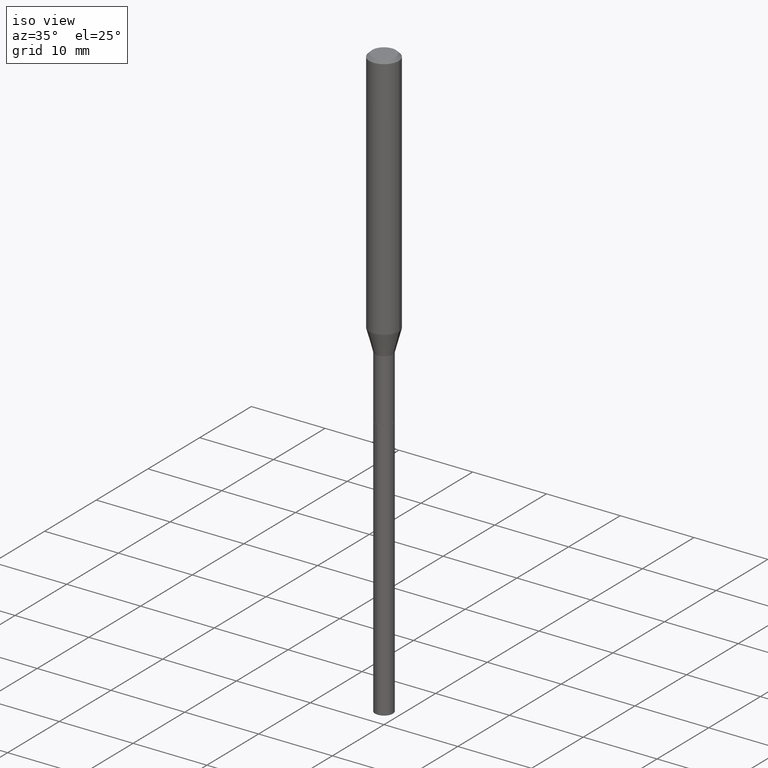
[diagram: clean part render]
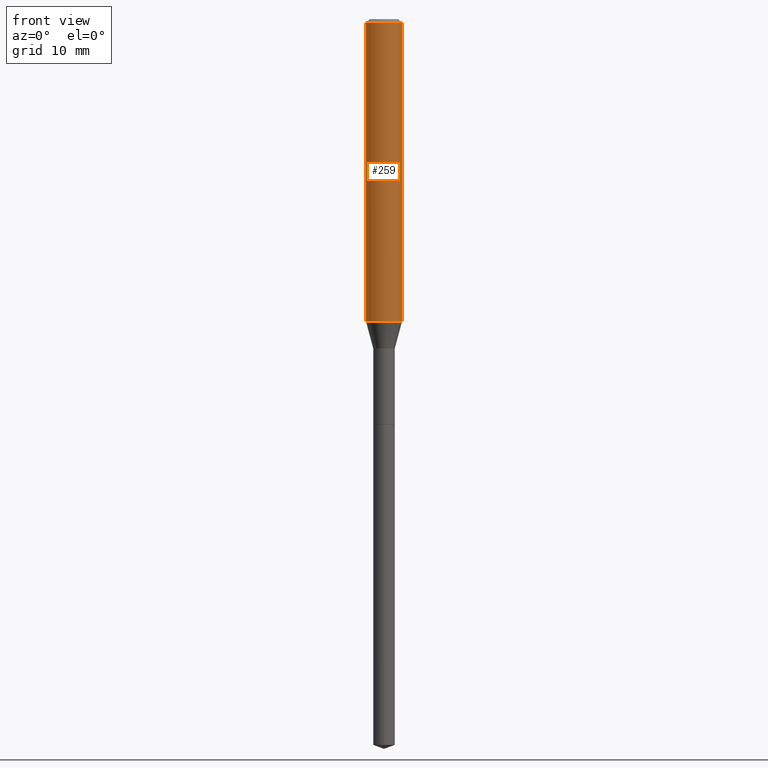
[diagram: tour spotlight — one face highlighted and labeled with its STEP entity id]
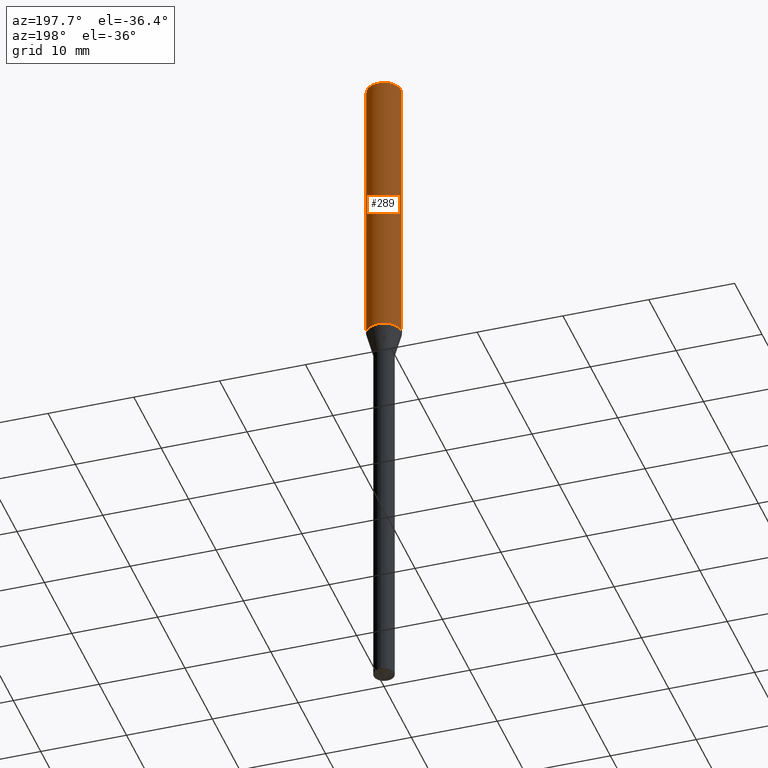
[diagram: tour spotlight — one face highlighted and labeled with its STEP entity id]
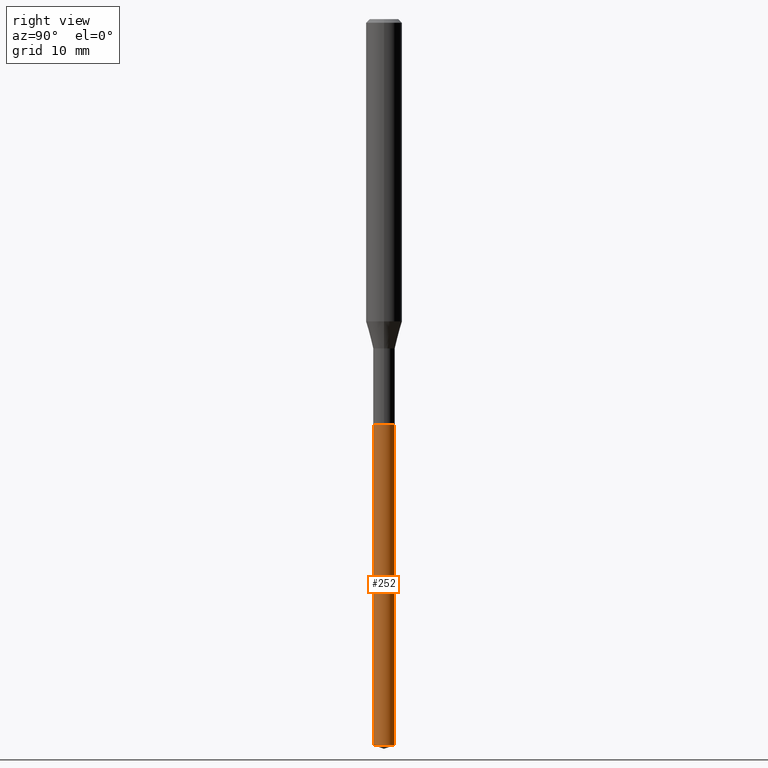
[diagram: tour spotlight — one face highlighted and labeled with its STEP entity id]
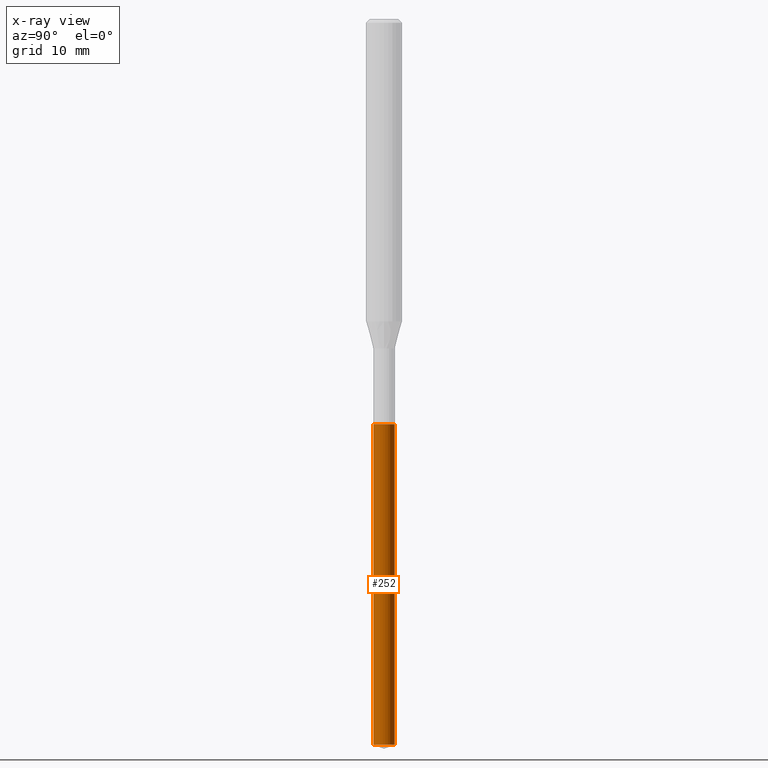
[diagram: x-ray of the same camera — body ghosted, this tour face saturated]
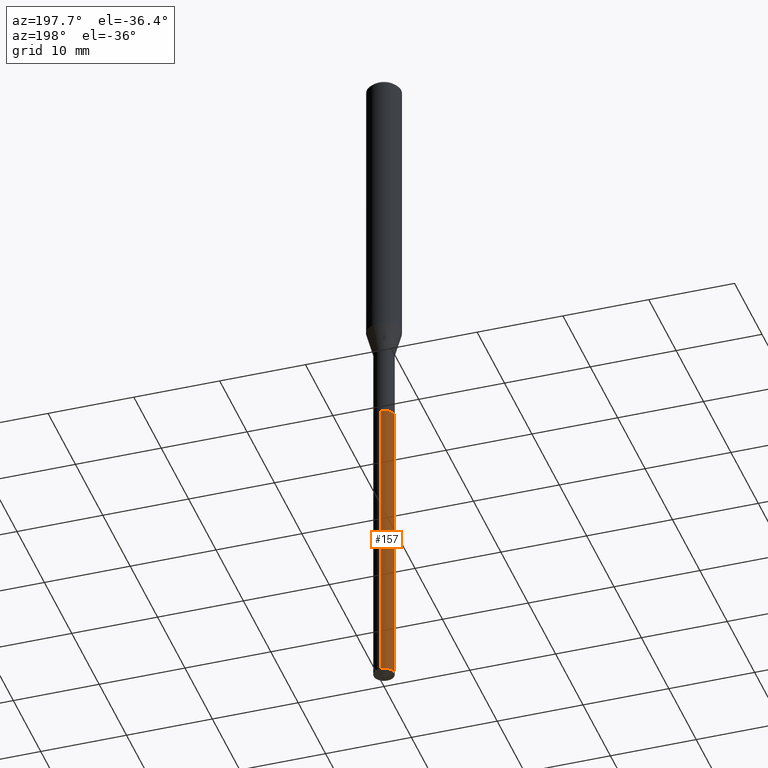
[diagram: tour spotlight — one face highlighted and labeled with its STEP entity id]
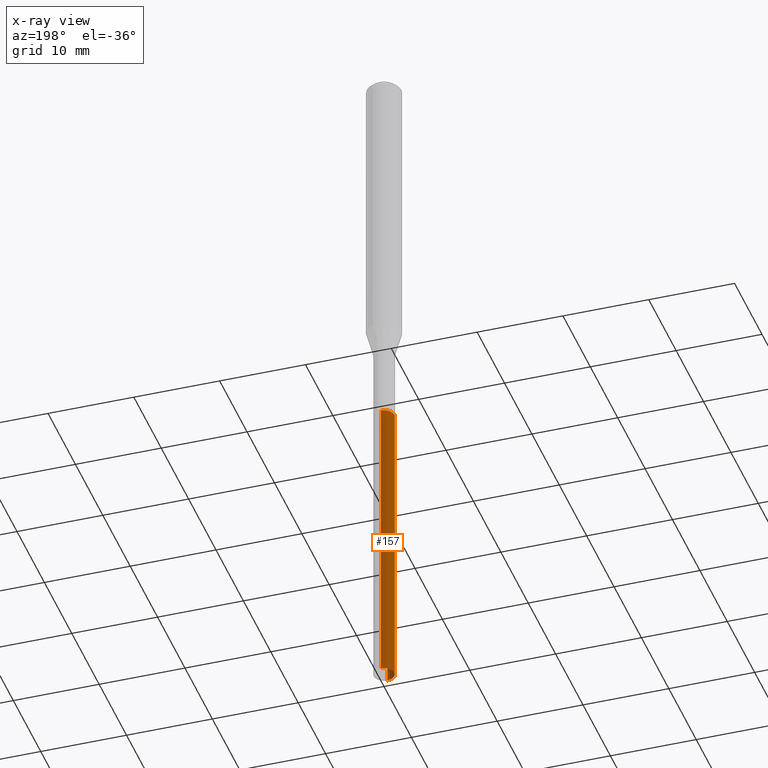
[diagram: x-ray of the same camera — body ghosted, this tour face saturated]
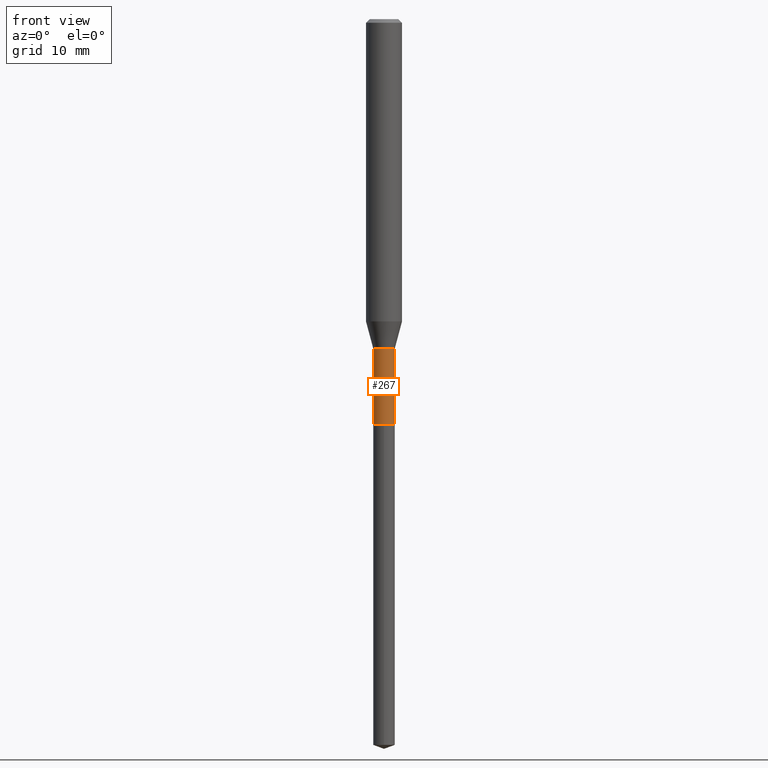
[diagram: tour spotlight — one face highlighted and labeled with its STEP entity id]
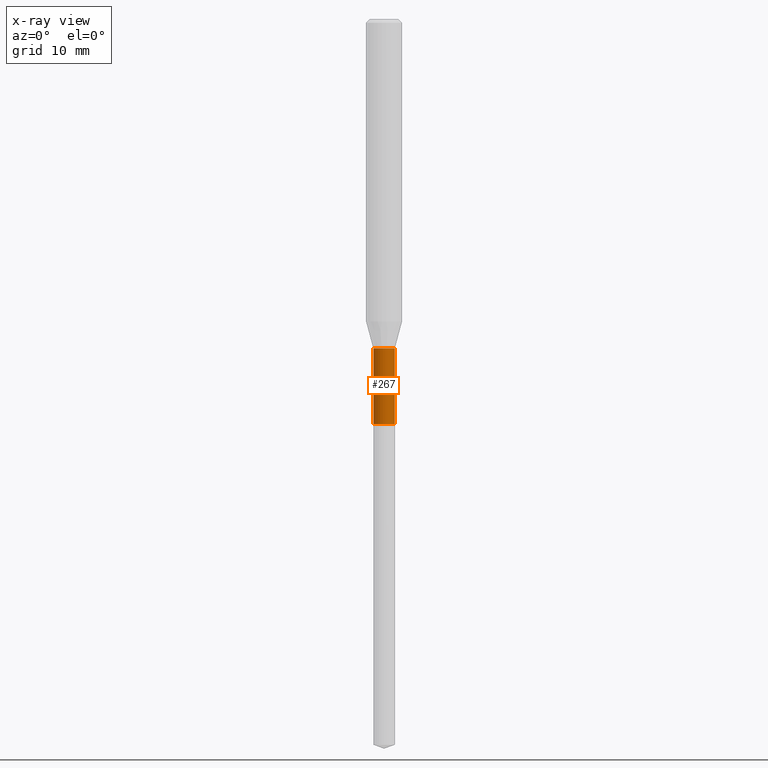
[diagram: x-ray of the same camera — body ghosted, this tour face saturated]
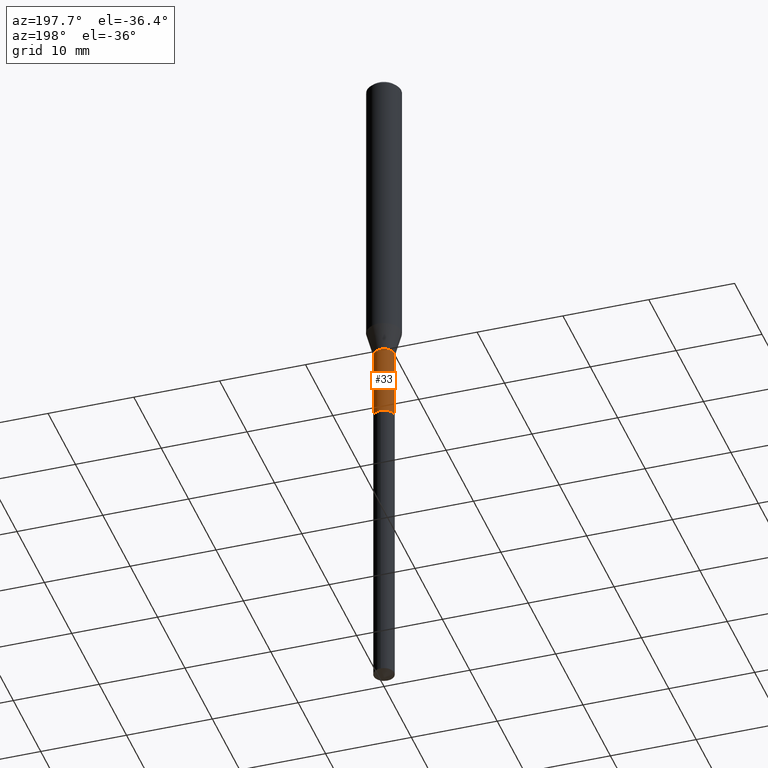
[diagram: tour spotlight — one face highlighted and labeled with its STEP entity id]
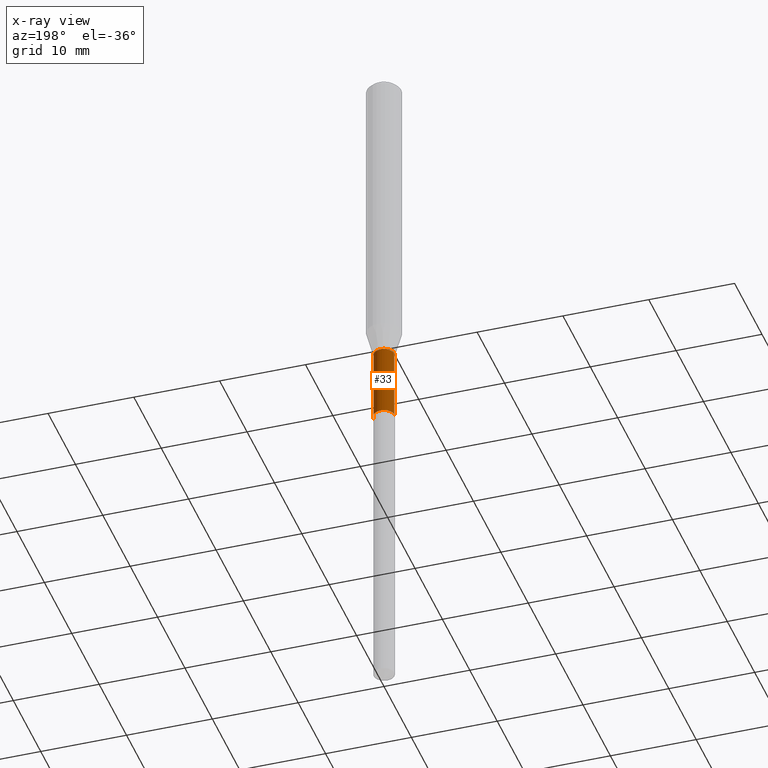
[diagram: x-ray of the same camera — body ghosted, this tour face saturated]
A machine part: a face-by-face anatomy tour. The part has 17 B-rep faces; the first image is the clean iso view, then the 6 largest visible faces are spotlighted one at a time (largest first), each with its STEP entity span.

Face 1 — front view, entity #259. In plain terms, the highlighted cylindrical surface (edge-blend (fillet) strip) has radius 2.0003 mm, axis along (-0, 0, 1).
Definition (entity closure, byte-faithful):
#22 = DIRECTION ( 'NONE',  ( -2.445468806185136597E-29, 3.491481338843145583E-15, 1.000000000000000000 ) ) ;
#41 = DIRECTION ( 'NONE',  ( -2.445468806185136877E-29, 3.491481338843145188E-15, 1.000000000000000000 ) ) ;
#57 = VERTEX_POINT ( 'NONE', #105 ) ;
#60 = DIRECTION ( 'NONE',  ( 1.000000000000000000, -6.982962677686265922E-15, 0.000000000000000000 ) ) ;
#66 = DIRECTION ( 'NONE',  ( 1.000000000000000000, -6.982962677686267499E-15, 4.876176775795935232E-29 ) ) ;
#105 = CARTESIAN_POINT ( 'NONE',  ( -0.07875000000000000056, -1.774136962595884491E-15, -0.01575000000000009726 ) ) ;
#110 = FACE_OUTER_BOUND ( 'NONE', #137, .T. ) ;
#137 = EDGE_LOOP ( 'NONE', ( #394, #271, #168, #328 ) ) ;
#141 = VECTOR ( 'NONE', #256, 39.37007874015748143 ) ;
#147 = CARTESIAN_POINT ( 'NONE',  ( 3.230563088838193382E-29, -4.612387902927150012E-15, -1.321040399561580037 ) ) ;
#152 = EDGE_CURVE ( 'NONE', #428, #280, #210, .T. ) ;
#161 = VERTEX_POINT ( 'NONE', #437 ) ;
#168 = ORIENTED_EDGE ( 'NONE', *, *, #243, .T. ) ;
#175 = EDGE_CURVE ( 'NONE', #57, #161, #454, .T. ) ;
#179 = DIRECTION ( 'NONE',  ( -2.445468806185136597E-29, 3.491481338843145583E-15, 1.000000000000000000 ) ) ;
#194 = CARTESIAN_POINT ( 'NONE',  ( -0.07875000000000008382, 5.595524044110794920E-16, -3.873661383575742696E-30 ) ) ;
#202 = AXIS2_PLACEMENT_3D ( 'NONE', #147, #264, #378 ) ;
#210 = CIRCLE ( 'NONE', #202, 0.07875000000000016709 ) ;
#243 = EDGE_CURVE ( 'NONE', #280, #161, #484, .T. ) ;
#254 = CARTESIAN_POINT ( 'NONE',  ( 0.000000000000000000, 0.000000000000000000, 0.000000000000000000 ) ) ;
#256 = DIRECTION ( 'NONE',  ( -2.445468806185136877E-29, 3.491481338843145188E-15, 1.000000000000000000 ) ) ;
#259 = ADVANCED_FACE ( 'NONE', ( #110 ), #479, .T. ) ;
#264 = DIRECTION ( 'NONE',  ( -2.445468806185136597E-29, 3.491481338843145583E-15, 1.000000000000000000 ) ) ;
#271 = ORIENTED_EDGE ( 'NONE', *, *, #152, .T. ) ;
#274 = AXIS2_PLACEMENT_3D ( 'NONE', #254, #179, #66 ) ;
#280 = VERTEX_POINT ( 'NONE', #481 ) ;
#328 = ORIENTED_EDGE ( 'NONE', *, *, #175, .F. ) ;
#329 = CARTESIAN_POINT ( 'NONE',  ( 0.07875000000000008382, -5.499083108677941345E-16, 3.839989210939303220E-30 ) ) ;
#349 = LINE ( 'NONE', #194, #414 ) ;
#375 = EDGE_CURVE ( 'NONE', #428, #57, #349, .T. ) ;
#378 = DIRECTION ( 'NONE',  ( 1.000000000000000000, -6.982962677686271444E-15, 0.000000000000000000 ) ) ;
#379 = CARTESIAN_POINT ( 'NONE',  ( -0.07875000000000016709, -4.052835498516069633E-15, -1.321040399561580037 ) ) ;
#384 = AXIS2_PLACEMENT_3D ( 'NONE', #441, #22, #60 ) ;
#394 = ORIENTED_EDGE ( 'NONE', *, *, #375, .F. ) ;
#414 = VECTOR ( 'NONE', #41, 39.37007874015748143 ) ;
#428 = VERTEX_POINT ( 'NONE', #379 ) ;
#437 = CARTESIAN_POINT ( 'NONE',  ( 0.07875000000000000056, -6.048991419545733705E-16, -0.01575000000000009726 ) ) ;
#441 = CARTESIAN_POINT ( 'NONE',  ( 3.851613369741613486E-31, -5.499083108677987691E-17, -0.01575000000000009726 ) ) ;
#454 = CIRCLE ( 'NONE', #384, 0.07875000000000000056 ) ;
#479 = CYLINDRICAL_SURFACE ( 'NONE', #274, 0.07875000000000008382 ) ;
#481 = CARTESIAN_POINT ( 'NONE',  ( 0.07875000000000016709, -5.162296213794944147E-15, -1.321040399561580037 ) ) ;
#484 = LINE ( 'NONE', #329, #141 ) ;

Face 2 — auxiliary view, entity #289. In plain terms, the highlighted cylindrical surface (edge-blend (fillet) strip) has radius 2.0003 mm, axis along (-0, 0, 1).
Definition (entity closure, byte-faithful):
#2 = CIRCLE ( 'NONE', #260, 0.07875000000000016709 ) ;
#27 = EDGE_LOOP ( 'NONE', ( #316, #129, #382, #277 ) ) ;
#29 = DIRECTION ( 'NONE',  ( 1.000000000000000000, -6.982962677686267499E-15, 4.876176775795935232E-29 ) ) ;
#40 = DIRECTION ( 'NONE',  ( -2.445468806185136597E-29, 3.491481338843145583E-15, 1.000000000000000000 ) ) ;
#41 = DIRECTION ( 'NONE',  ( -2.445468806185136877E-29, 3.491481338843145188E-15, 1.000000000000000000 ) ) ;
#50 = AXIS2_PLACEMENT_3D ( 'NONE', #276, #40, #213 ) ;
#57 = VERTEX_POINT ( 'NONE', #105 ) ;
#105 = CARTESIAN_POINT ( 'NONE',  ( -0.07875000000000000056, -1.774136962595884491E-15, -0.01575000000000009726 ) ) ;
#112 = CYLINDRICAL_SURFACE ( 'NONE', #312, 0.07875000000000008382 ) ;
#129 = ORIENTED_EDGE ( 'NONE', *, *, #375, .T. ) ;
#141 = VECTOR ( 'NONE', #256, 39.37007874015748143 ) ;
#146 = DIRECTION ( 'NONE',  ( 1.000000000000000000, -6.982962677686271444E-15, 0.000000000000000000 ) ) ;
#161 = VERTEX_POINT ( 'NONE', #437 ) ;
#182 = CARTESIAN_POINT ( 'NONE',  ( 3.230563088838193382E-29, -4.612387902927150012E-15, -1.321040399561580037 ) ) ;
#194 = CARTESIAN_POINT ( 'NONE',  ( -0.07875000000000008382, 5.595524044110794920E-16, -3.873661383575742696E-30 ) ) ;
#213 = DIRECTION ( 'NONE',  ( 1.000000000000000000, -6.982962677686265922E-15, 0.000000000000000000 ) ) ;
#228 = FACE_OUTER_BOUND ( 'NONE', #27, .T. ) ;
#243 = EDGE_CURVE ( 'NONE', #280, #161, #484, .T. ) ;
#256 = DIRECTION ( 'NONE',  ( -2.445468806185136877E-29, 3.491481338843145188E-15, 1.000000000000000000 ) ) ;
#260 = AXIS2_PLACEMENT_3D ( 'NONE', #182, #261, #146 ) ;
#261 = DIRECTION ( 'NONE',  ( -2.445468806185136597E-29, 3.491481338843145583E-15, 1.000000000000000000 ) ) ;
#276 = CARTESIAN_POINT ( 'NONE',  ( 3.851613369741613486E-31, -5.499083108677987691E-17, -0.01575000000000009726 ) ) ;
#277 = ORIENTED_EDGE ( 'NONE', *, *, #243, .F. ) ;
#279 = EDGE_CURVE ( 'NONE', #280, #428, #2, .T. ) ;
#280 = VERTEX_POINT ( 'NONE', #481 ) ;
#289 = ADVANCED_FACE ( 'NONE', ( #228 ), #112, .T. ) ;
#290 = CIRCLE ( 'NONE', #50, 0.07875000000000000056 ) ;
#300 = DIRECTION ( 'NONE',  ( -2.445468806185136597E-29, 3.491481338843145583E-15, 1.000000000000000000 ) ) ;
#312 = AXIS2_PLACEMENT_3D ( 'NONE', #366, #300, #29 ) ;
#316 = ORIENTED_EDGE ( 'NONE', *, *, #279, .T. ) ;
#329 = CARTESIAN_POINT ( 'NONE',  ( 0.07875000000000008382, -5.499083108677941345E-16, 3.839989210939303220E-30 ) ) ;
#349 = LINE ( 'NONE', #194, #414 ) ;
#366 = CARTESIAN_POINT ( 'NONE',  ( 0.000000000000000000, 0.000000000000000000, 0.000000000000000000 ) ) ;
#375 = EDGE_CURVE ( 'NONE', #428, #57, #349, .T. ) ;
#379 = CARTESIAN_POINT ( 'NONE',  ( -0.07875000000000016709, -4.052835498516069633E-15, -1.321040399561580037 ) ) ;
#382 = ORIENTED_EDGE ( 'NONE', *, *, #482, .F. ) ;
#414 = VECTOR ( 'NONE', #41, 39.37007874015748143 ) ;
#428 = VERTEX_POINT ( 'NONE', #379 ) ;
#437 = CARTESIAN_POINT ( 'NONE',  ( 0.07875000000000000056, -6.048991419545733705E-16, -0.01575000000000009726 ) ) ;
#481 = CARTESIAN_POINT ( 'NONE',  ( 0.07875000000000016709, -5.162296213794944147E-15, -1.321040399561580037 ) ) ;
#482 = EDGE_CURVE ( 'NONE', #161, #57, #290, .T. ) ;
#484 = LINE ( 'NONE', #329, #141 ) ;

Face 3 — right view, entity #252. An x-ray twin of the same camera follows (body ghosted, this face saturated) — the face is partly hidden behind the body. In plain terms, the highlighted cylindrical surface (edge-blend (fillet) strip) has radius 1.2001 mm, axis along (-0, 0, 1).
Definition (entity closure, byte-faithful):
#36 = DIRECTION ( 'NONE',  ( -6.982962677686265922E-15, -1.000000000000000000, 0.000000000000000000 ) ) ;
#43 = ORIENTED_EDGE ( 'NONE', *, *, #75, .T. ) ;
#46 = ORIENTED_EDGE ( 'NONE', *, *, #89, .F. ) ;
#54 = VERTEX_POINT ( 'NONE', #371 ) ;
#69 = CARTESIAN_POINT ( 'NONE',  ( 4.332637083918206987E-29, -6.185857488028401870E-15, -1.771700000000000497 ) ) ;
#71 = CARTESIAN_POINT ( 'NONE',  ( 4.332637083918206987E-29, -6.185857488028401870E-15, -1.771700000000000497 ) ) ;
#75 = EDGE_CURVE ( 'NONE', #233, #348, #448, .T. ) ;
#89 = EDGE_CURVE ( 'NONE', #54, #418, #109, .T. ) ;
#106 = CARTESIAN_POINT ( 'NONE',  ( 3.357314426467248951E-16, 0.04724999999998893974, -3.171802406430922705 ) ) ;
#109 = LINE ( 'NONE', #188, #234 ) ;
#111 = DIRECTION ( 'NONE',  ( -2.445490253052761911E-29, 3.491450625708026576E-15, 1.000000000000000000 ) ) ;
#114 = DIRECTION ( 'NONE',  ( -2.445490253052761911E-29, 3.491450625708026576E-15, 1.000000000000000000 ) ) ;
#128 = EDGE_CURVE ( 'NONE', #418, #348, #148, .T. ) ;
#145 = CYLINDRICAL_SURFACE ( 'NONE', #242, 0.04724999999999999339 ) ;
#148 = CIRCLE ( 'NONE', #413, 0.04724999999999999339 ) ;
#149 = DIRECTION ( 'NONE',  ( -2.445490253052761631E-29, 3.491450625708026576E-15, 1.000000000000000000 ) ) ;
#155 = CARTESIAN_POINT ( 'NONE',  ( -3.299449865206327187E-16, -0.04725000000000618289, -1.771700000000000053 ) ) ;
#188 = CARTESIAN_POINT ( 'NONE',  ( -3.299449865206327187E-16, -0.04725000000000618289, -1.771700000000000053 ) ) ;
#189 = CARTESIAN_POINT ( 'NONE',  ( 3.357314426467249937E-16, 0.04724999999999380390, -1.771700000000000719 ) ) ;
#199 = EDGE_CURVE ( 'NONE', #54, #233, #229, .T. ) ;
#214 = ORIENTED_EDGE ( 'NONE', *, *, #128, .F. ) ;
#229 = CIRCLE ( 'NONE', #319, 0.04724999999999999339 ) ;
#233 = VERTEX_POINT ( 'NONE', #106 ) ;
#234 = VECTOR ( 'NONE', #111, 39.37007874015748143 ) ;
#242 = AXIS2_PLACEMENT_3D ( 'NONE', #69, #149, #487 ) ;
#252 = ADVANCED_FACE ( 'NONE', ( #338 ), #145, .T. ) ;
#319 = AXIS2_PLACEMENT_3D ( 'NONE', #374, #396, #36 ) ;
#338 = FACE_OUTER_BOUND ( 'NONE', #360, .T. ) ;
#339 = DIRECTION ( 'NONE',  ( -2.445490253052761631E-29, 3.491450625708026576E-15, 1.000000000000000000 ) ) ;
#348 = VERTEX_POINT ( 'NONE', #189 ) ;
#360 = EDGE_LOOP ( 'NONE', ( #390, #43, #214, #46 ) ) ;
#371 = CARTESIAN_POINT ( 'NONE',  ( -3.299449865205985511E-16, -0.04725000000001107481, -3.171802406430922705 ) ) ;
#374 = CARTESIAN_POINT ( 'NONE',  ( 7.756573872120744429E-29, -1.107424591101695963E-14, -3.171802406430922705 ) ) ;
#390 = ORIENTED_EDGE ( 'NONE', *, *, #199, .T. ) ;
#396 = DIRECTION ( 'NONE',  ( -2.445490253052761631E-29, 3.491450625708026576E-15, 1.000000000000000000 ) ) ;
#413 = AXIS2_PLACEMENT_3D ( 'NONE', #71, #339, #489 ) ;
#418 = VERTEX_POINT ( 'NONE', #155 ) ;
#432 = VECTOR ( 'NONE', #114, 39.37007874015748143 ) ;
#448 = LINE ( 'NONE', #486, #432 ) ;
#486 = CARTESIAN_POINT ( 'NONE',  ( 3.357314426466905796E-16, 0.04724999999999380390, -1.771700000000000719 ) ) ;
#487 = DIRECTION ( 'NONE',  ( -6.982962677686265922E-15, -1.000000000000000000, 5.781688875479922944E-15 ) ) ;
#489 = DIRECTION ( 'NONE',  ( -6.982962677686265922E-15, -1.000000000000000000, 5.781688875479922944E-15 ) ) ;

Face 4 — auxiliary view, entity #157. An x-ray twin of the same camera follows (body ghosted, this face saturated) — the face is partly hidden behind the body. In plain terms, the highlighted cylindrical surface (edge-blend (fillet) strip) has radius 1.2001 mm, axis along (-0, 0, 1).
Definition (entity closure, byte-faithful):
#8 = AXIS2_PLACEMENT_3D ( 'NONE', #409, #460, #125 ) ;
#28 = ORIENTED_EDGE ( 'NONE', *, *, #166, .T. ) ;
#54 = VERTEX_POINT ( 'NONE', #371 ) ;
#75 = EDGE_CURVE ( 'NONE', #233, #348, #448, .T. ) ;
#82 = AXIS2_PLACEMENT_3D ( 'NONE', #144, #434, #98 ) ;
#89 = EDGE_CURVE ( 'NONE', #54, #418, #109, .T. ) ;
#94 = ORIENTED_EDGE ( 'NONE', *, *, #75, .F. ) ;
#98 = DIRECTION ( 'NONE',  ( -6.982962677686265922E-15, -1.000000000000000000, 5.781688875479922944E-15 ) ) ;
#106 = CARTESIAN_POINT ( 'NONE',  ( 3.357314426467248951E-16, 0.04724999999998893974, -3.171802406430922705 ) ) ;
#107 = AXIS2_PLACEMENT_3D ( 'NONE', #440, #331, #370 ) ;
#109 = LINE ( 'NONE', #188, #234 ) ;
#111 = DIRECTION ( 'NONE',  ( -2.445490253052761911E-29, 3.491450625708026576E-15, 1.000000000000000000 ) ) ;
#114 = DIRECTION ( 'NONE',  ( -2.445490253052761911E-29, 3.491450625708026576E-15, 1.000000000000000000 ) ) ;
#125 = DIRECTION ( 'NONE',  ( -6.982962677686265922E-15, -1.000000000000000000, 5.781688875479922944E-15 ) ) ;
#144 = CARTESIAN_POINT ( 'NONE',  ( 4.332637083918206987E-29, -6.185857488028401870E-15, -1.771700000000000497 ) ) ;
#155 = CARTESIAN_POINT ( 'NONE',  ( -3.299449865206327187E-16, -0.04725000000000618289, -1.771700000000000053 ) ) ;
#157 = ADVANCED_FACE ( 'NONE', ( #362 ), #326, .T. ) ;
#166 = EDGE_CURVE ( 'NONE', #233, #54, #485, .T. ) ;
#188 = CARTESIAN_POINT ( 'NONE',  ( -3.299449865206327187E-16, -0.04725000000000618289, -1.771700000000000053 ) ) ;
#189 = CARTESIAN_POINT ( 'NONE',  ( 3.357314426467249937E-16, 0.04724999999999380390, -1.771700000000000719 ) ) ;
#233 = VERTEX_POINT ( 'NONE', #106 ) ;
#234 = VECTOR ( 'NONE', #111, 39.37007874015748143 ) ;
#326 = CYLINDRICAL_SURFACE ( 'NONE', #82, 0.04724999999999999339 ) ;
#331 = DIRECTION ( 'NONE',  ( -2.445490253052761631E-29, 3.491450625708026576E-15, 1.000000000000000000 ) ) ;
#344 = ORIENTED_EDGE ( 'NONE', *, *, #475, .F. ) ;
#348 = VERTEX_POINT ( 'NONE', #189 ) ;
#362 = FACE_OUTER_BOUND ( 'NONE', #385, .T. ) ;
#363 = ORIENTED_EDGE ( 'NONE', *, *, #89, .T. ) ;
#370 = DIRECTION ( 'NONE',  ( -6.982962677686265922E-15, -1.000000000000000000, 0.000000000000000000 ) ) ;
#371 = CARTESIAN_POINT ( 'NONE',  ( -3.299449865205985511E-16, -0.04725000000001107481, -3.171802406430922705 ) ) ;
#376 = CIRCLE ( 'NONE', #8, 0.04724999999999999339 ) ;
#385 = EDGE_LOOP ( 'NONE', ( #94, #28, #363, #344 ) ) ;
#409 = CARTESIAN_POINT ( 'NONE',  ( 4.332637083918206987E-29, -6.185857488028401870E-15, -1.771700000000000497 ) ) ;
#418 = VERTEX_POINT ( 'NONE', #155 ) ;
#432 = VECTOR ( 'NONE', #114, 39.37007874015748143 ) ;
#434 = DIRECTION ( 'NONE',  ( -2.445490253052761631E-29, 3.491450625708026576E-15, 1.000000000000000000 ) ) ;
#440 = CARTESIAN_POINT ( 'NONE',  ( 7.756573872120744429E-29, -1.107424591101695963E-14, -3.171802406430922705 ) ) ;
#448 = LINE ( 'NONE', #486, #432 ) ;
#460 = DIRECTION ( 'NONE',  ( -2.445490253052761631E-29, 3.491450625708026576E-15, 1.000000000000000000 ) ) ;
#475 = EDGE_CURVE ( 'NONE', #348, #418, #376, .T. ) ;
#485 = CIRCLE ( 'NONE', #107, 0.04724999999999999339 ) ;
#486 = CARTESIAN_POINT ( 'NONE',  ( 3.357314426466905796E-16, 0.04724999999999380390, -1.771700000000000719 ) ) ;

Face 5 — front view, entity #267. An x-ray twin of the same camera follows (body ghosted, this face saturated) — the face is partly hidden behind the body. In plain terms, the highlighted cylindrical surface (edge-blend (fillet) strip) has radius 1.2001 mm, axis along (-0, 0, 1).
Definition (entity closure, byte-faithful):
#26 = EDGE_CURVE ( 'NONE', #173, #392, #116, .T. ) ;
#44 = CARTESIAN_POINT ( 'NONE',  ( 0.04724999999999994482, -5.352790040580426446E-15, -1.438600000000000323 ) ) ;
#47 = DIRECTION ( 'NONE',  ( -2.445468806185136877E-29, 3.491481338843145188E-15, 1.000000000000000000 ) ) ;
#59 = AXIS2_PLACEMENT_3D ( 'NONE', #302, #450, #400 ) ;
#70 = CARTESIAN_POINT ( 'NONE',  ( -0.04724999999999997952, -5.267746958062718753E-15, -1.771200000000000552 ) ) ;
#84 = CARTESIAN_POINT ( 'NONE',  ( -0.04724999999999995870, 3.357314426466470444E-16, -2.324196830145441064E-30 ) ) ;
#96 = CARTESIAN_POINT ( 'NONE',  ( 3.518051424577938245E-29, -5.022845054059750439E-15, -1.438600000000000323 ) ) ;
#116 = CIRCLE ( 'NONE', #156, 0.04724999999999994482 ) ;
#122 = DIRECTION ( 'NONE',  ( -2.445468806185136877E-29, 3.491481338843145188E-15, 1.000000000000000000 ) ) ;
#156 = AXIS2_PLACEMENT_3D ( 'NONE', #96, #248, #399 ) ;
#159 = VERTEX_POINT ( 'NONE', #293 ) ;
#173 = VERTEX_POINT ( 'NONE', #398 ) ;
#176 = DIRECTION ( 'NONE',  ( 1.000000000000000000, -6.982962677686269077E-15, 0.000000000000000000 ) ) ;
#187 = VECTOR ( 'NONE', #122, 39.37007874015748143 ) ;
#195 = AXIS2_PLACEMENT_3D ( 'NONE', #476, #292, #176 ) ;
#212 = ORIENTED_EDGE ( 'NONE', *, *, #26, .F. ) ;
#215 = EDGE_LOOP ( 'NONE', ( #236, #239, #430, #212 ) ) ;
#226 = EDGE_CURVE ( 'NONE', #313, #159, #459, .T. ) ;
#236 = ORIENTED_EDGE ( 'NONE', *, *, #466, .F. ) ;
#239 = ORIENTED_EDGE ( 'NONE', *, *, #226, .T. ) ;
#248 = DIRECTION ( 'NONE',  ( -2.445468806185136597E-29, 3.491481338843145583E-15, 1.000000000000000000 ) ) ;
#267 = ADVANCED_FACE ( 'NONE', ( #334 ), #372, .T. ) ;
#292 = DIRECTION ( 'NONE',  ( -2.445468806185136597E-29, 3.491481338843145583E-15, 1.000000000000000000 ) ) ;
#293 = CARTESIAN_POINT ( 'NONE',  ( 0.04724999999999997952, -6.514056733879657952E-15, -1.771200000000000552 ) ) ;
#302 = CARTESIAN_POINT ( 'NONE',  ( 0.000000000000000000, 0.000000000000000000, 0.000000000000000000 ) ) ;
#308 = LINE ( 'NONE', #84, #387 ) ;
#313 = VERTEX_POINT ( 'NONE', #70 ) ;
#334 = FACE_OUTER_BOUND ( 'NONE', #215, .T. ) ;
#372 = CYLINDRICAL_SURFACE ( 'NONE', #59, 0.04724999999999995870 ) ;
#387 = VECTOR ( 'NONE', #47, 39.37007874015748143 ) ;
#392 = VERTEX_POINT ( 'NONE', #44 ) ;
#398 = CARTESIAN_POINT ( 'NONE',  ( -0.04724999999999994482, -5.267746958062718753E-15, -1.438600000000000323 ) ) ;
#399 = DIRECTION ( 'NONE',  ( 1.000000000000000000, -6.982962677686273810E-15, 0.000000000000000000 ) ) ;
#400 = DIRECTION ( 'NONE',  ( 1.000000000000000000, -6.982962677686266711E-15, 4.876176775795935793E-29 ) ) ;
#425 = EDGE_CURVE ( 'NONE', #159, #392, #458, .T. ) ;
#430 = ORIENTED_EDGE ( 'NONE', *, *, #425, .T. ) ;
#450 = DIRECTION ( 'NONE',  ( -2.445468806185136597E-29, 3.491481338843145583E-15, 1.000000000000000000 ) ) ;
#455 = CARTESIAN_POINT ( 'NONE',  ( 0.04724999999999995870, -3.299449865206758102E-16, 2.303993526563577728E-30 ) ) ;
#458 = LINE ( 'NONE', #455, #187 ) ;
#459 = CIRCLE ( 'NONE', #195, 0.04724999999999997952 ) ;
#466 = EDGE_CURVE ( 'NONE', #313, #173, #308, .T. ) ;
#476 = CARTESIAN_POINT ( 'NONE',  ( 4.331414349515115307E-29, -6.184111747358981944E-15, -1.771200000000000552 ) ) ;

Face 6 — auxiliary view, entity #33. An x-ray twin of the same camera follows (body ghosted, this face saturated) — the face is partly hidden behind the body. In plain terms, the highlighted cylindrical surface (edge-blend (fillet) strip) has radius 1.2001 mm, axis along (-0, 0, 1).
Definition (entity closure, byte-faithful):
#32 = DIRECTION ( 'NONE',  ( 1.000000000000000000, -6.982962677686273810E-15, 0.000000000000000000 ) ) ;
#33 = ADVANCED_FACE ( 'NONE', ( #451 ), #444, .T. ) ;
#38 = AXIS2_PLACEMENT_3D ( 'NONE', #436, #103, #217 ) ;
#44 = CARTESIAN_POINT ( 'NONE',  ( 0.04724999999999994482, -5.352790040580426446E-15, -1.438600000000000323 ) ) ;
#47 = DIRECTION ( 'NONE',  ( -2.445468806185136877E-29, 3.491481338843145188E-15, 1.000000000000000000 ) ) ;
#62 = ORIENTED_EDGE ( 'NONE', *, *, #192, .F. ) ;
#70 = CARTESIAN_POINT ( 'NONE',  ( -0.04724999999999997952, -5.267746958062718753E-15, -1.771200000000000552 ) ) ;
#74 = CIRCLE ( 'NONE', #38, 0.04724999999999997952 ) ;
#84 = CARTESIAN_POINT ( 'NONE',  ( -0.04724999999999995870, 3.357314426466470444E-16, -2.324196830145441064E-30 ) ) ;
#92 = ORIENTED_EDGE ( 'NONE', *, *, #425, .F. ) ;
#102 = ORIENTED_EDGE ( 'NONE', *, *, #466, .T. ) ;
#103 = DIRECTION ( 'NONE',  ( -2.445468806185136597E-29, 3.491481338843145583E-15, 1.000000000000000000 ) ) ;
#122 = DIRECTION ( 'NONE',  ( -2.445468806185136877E-29, 3.491481338843145188E-15, 1.000000000000000000 ) ) ;
#159 = VERTEX_POINT ( 'NONE', #293 ) ;
#173 = VERTEX_POINT ( 'NONE', #398 ) ;
#180 = CARTESIAN_POINT ( 'NONE',  ( 0.000000000000000000, 0.000000000000000000, 0.000000000000000000 ) ) ;
#187 = VECTOR ( 'NONE', #122, 39.37007874015748143 ) ;
#190 = DIRECTION ( 'NONE',  ( 1.000000000000000000, -6.982962677686266711E-15, 4.876176775795935793E-29 ) ) ;
#192 = EDGE_CURVE ( 'NONE', #392, #173, #359, .T. ) ;
#193 = EDGE_LOOP ( 'NONE', ( #395, #102, #62, #92 ) ) ;
#217 = DIRECTION ( 'NONE',  ( 1.000000000000000000, -6.982962677686269077E-15, 0.000000000000000000 ) ) ;
#224 = DIRECTION ( 'NONE',  ( -2.445468806185136597E-29, 3.491481338843145583E-15, 1.000000000000000000 ) ) ;
#238 = EDGE_CURVE ( 'NONE', #159, #313, #74, .T. ) ;
#281 = AXIS2_PLACEMENT_3D ( 'NONE', #180, #224, #190 ) ;
#293 = CARTESIAN_POINT ( 'NONE',  ( 0.04724999999999997952, -6.514056733879657952E-15, -1.771200000000000552 ) ) ;
#308 = LINE ( 'NONE', #84, #387 ) ;
#313 = VERTEX_POINT ( 'NONE', #70 ) ;
#359 = CIRCLE ( 'NONE', #433, 0.04724999999999994482 ) ;
#387 = VECTOR ( 'NONE', #47, 39.37007874015748143 ) ;
#392 = VERTEX_POINT ( 'NONE', #44 ) ;
#395 = ORIENTED_EDGE ( 'NONE', *, *, #238, .T. ) ;
#398 = CARTESIAN_POINT ( 'NONE',  ( -0.04724999999999994482, -5.267746958062718753E-15, -1.438600000000000323 ) ) ;
#425 = EDGE_CURVE ( 'NONE', #159, #392, #458, .T. ) ;
#433 = AXIS2_PLACEMENT_3D ( 'NONE', #488, #447, #32 ) ;
#436 = CARTESIAN_POINT ( 'NONE',  ( 4.331414349515115307E-29, -6.184111747358981944E-15, -1.771200000000000552 ) ) ;
#444 = CYLINDRICAL_SURFACE ( 'NONE', #281, 0.04724999999999995870 ) ;
#447 = DIRECTION ( 'NONE',  ( -2.445468806185136597E-29, 3.491481338843145583E-15, 1.000000000000000000 ) ) ;
#451 = FACE_OUTER_BOUND ( 'NONE', #193, .T. ) ;
#455 = CARTESIAN_POINT ( 'NONE',  ( 0.04724999999999995870, -3.299449865206758102E-16, 2.303993526563577728E-30 ) ) ;
#458 = LINE ( 'NONE', #455, #187 ) ;
#466 = EDGE_CURVE ( 'NONE', #313, #173, #308, .T. ) ;
#488 = CARTESIAN_POINT ( 'NONE',  ( 3.518051424577938245E-29, -5.022845054059750439E-15, -1.438600000000000323 ) ) ;